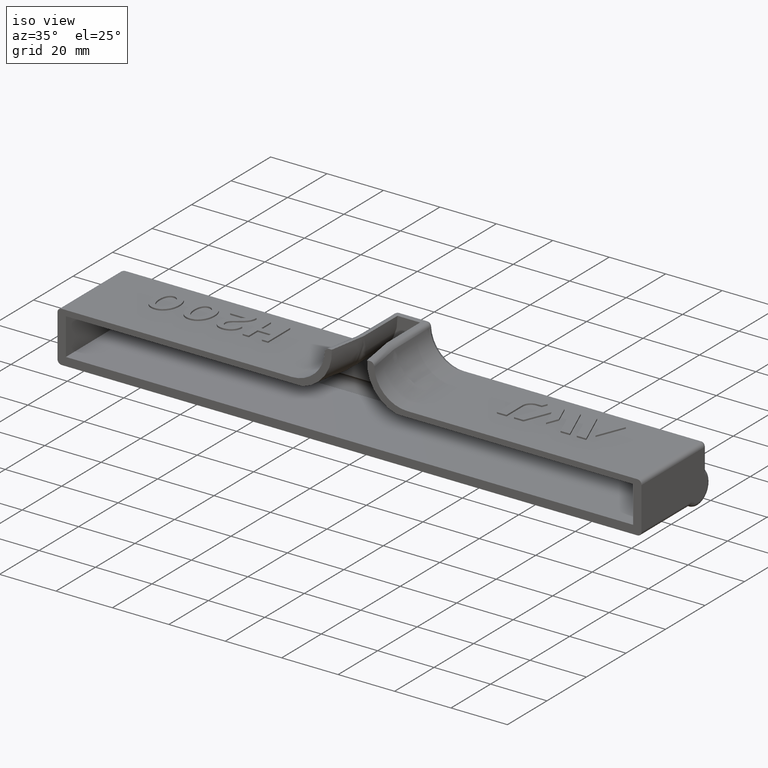
[diagram: clean part render]
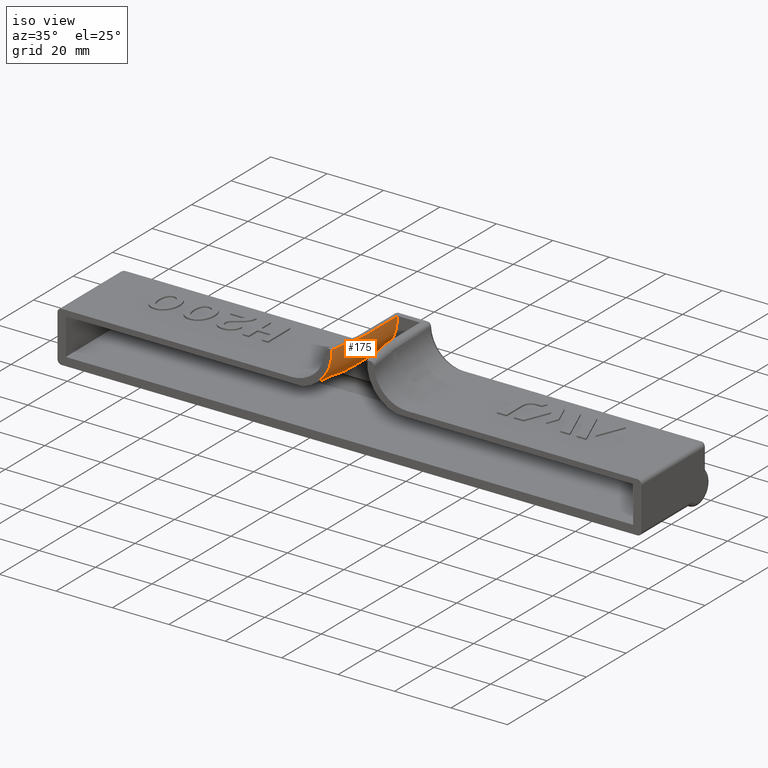
[diagram: same view with one face highlighted and labeled with its STEP entity id]
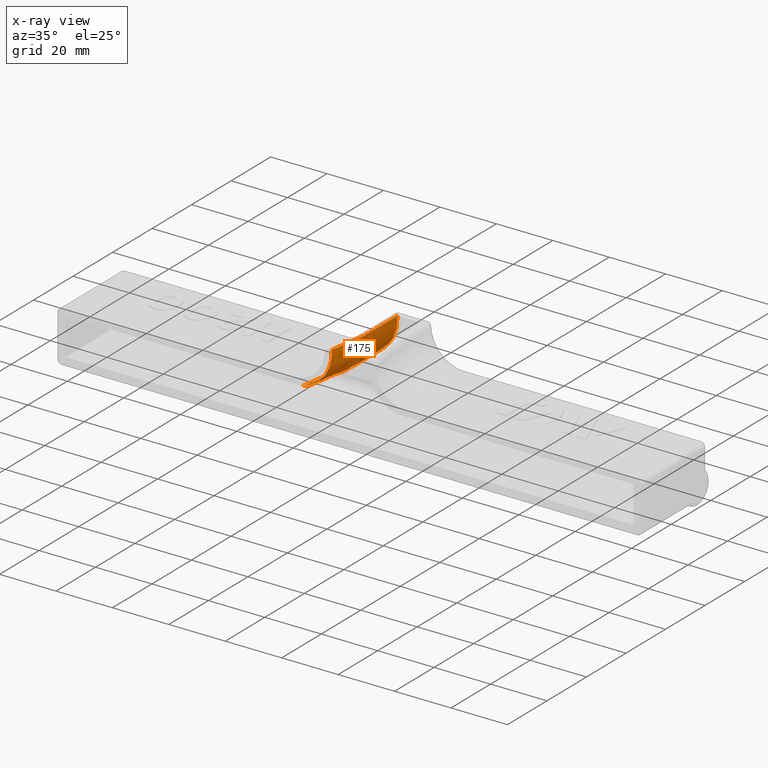
[diagram: x-ray of the same camera — body ghosted, the highlighted face saturated]
A machine part, iso view. The second image highlights one B-rep face of the part: STEP entity #175.
The next image is the same camera in x-ray: the body ghosted, the highlighted face saturated — about 1% of this face is hidden behind the body in this view.
In plain terms, the highlighted face is a OffsetSurface surface.
Its self-contained STEP definition (entity closure, byte-faithful):
#175=ADVANCED_FACE('',(#367),#368,.F.);
#367=FACE_OUTER_BOUND('',#1484,.T.);
#368=OFFSET_SURFACE('',#1485,-2.5,.F.);
#1484=EDGE_LOOP('',(#2280,#2281,#2282,#2283));
#1485=B_SPLINE_SURFACE_WITH_KNOTS('',3,3,((#2284,#2285,#2286,#2287,#2288,#2289,#2290,#2291,#2292,#2293,#2294),(#2295,#2296,#2297,#2298,#2299,#2300,#2301,#2302,#2303,#2304,#2305),(#2306,#2307,#2308,#2309,#2310,#2311,#2312,#2313,#2314,#2315,#2316),(#2317,#2318,#2319,#2320,#2321,#2322,#2323,#2324,#2325,#2326,#2327),(#2328,#2329,#2330,#2331,#2332,#2333,#2334,#2335,#2336,#2337,#2338),(#2339,#2340,#2341,#2342,#2343,#2344,#2345,#2346,#2347,#2348,#2349),(#2350,#2351,#2352,#2353,#2354,#2355,#2356,#2357,#2358,#2359,#2360),(#2361,#2362,#2363,#2364,#2365,#2366,#2367,#2368,#2369,#2370,#2371),(#2372,#2373,#2374,#2375,#2376,#2377,#2378,#2379,#2380,#2381,#2382)),.UNSPECIFIED.,.F.,.F.,.F.,(4,2,1,1,1,4),(4,2,1,1,1,2,4),(0.0,0.2,0.4,0.6,0.8,1.0),(0.164381519444522,1.0,2.0,3.0,4.0,5.0,5.8123749978304),.UNSPECIFIED.);
#2280=ORIENTED_EDGE('',*,*,#3014,.F.);
#2281=ORIENTED_EDGE('',*,*,#3040,.T.);
#2282=ORIENTED_EDGE('',*,*,#2970,.F.);
#2283=ORIENTED_EDGE('',*,*,#2992,.F.);
#2284=CARTESIAN_POINT('',(-6.5,30.0000000000008,21.0));
#2285=CARTESIAN_POINT('',(-6.5,24.9165910901733,21.0));
#2286=CARTESIAN_POINT('',(-6.5,19.8331821803459,21.0));
#2287=CARTESIAN_POINT('',(-6.5,14.4588850677116,21.0));
#2288=CARTESIAN_POINT('',(-6.51269440632922,13.8771086620982,21.0));
#2289=CARTESIAN_POINT('',(-6.56978298802479,13.0061052203591,21.0));
#2290=CARTESIAN_POINT('',(-6.66480987056215,12.138420949857,21.0));
#2291=CARTESIAN_POINT('',(-6.75333273343364,11.5632786745637,21.0));
#2292=CARTESIAN_POINT('',(-7.57740105806199,6.88975496697608,21.0));
#2293=CARTESIAN_POINT('',(-8.35095717636814,2.50270021677236,21.0));
#2294=CARTESIAN_POINT('',(-9.12451329467429,-1.88435453343137,21.0));
#2295=CARTESIAN_POINT('',(-6.5,30.0000000000008,20.6666666666667));
#2296=CARTESIAN_POINT('',(-6.5,24.9165910901733,20.6666666666667));
#2297=CARTESIAN_POINT('',(-6.5,19.8331821803459,20.6666666666667));
#2298=CARTESIAN_POINT('',(-6.5,14.4588850677117,20.6666666666667));
#2299=CARTESIAN_POINT('',(-6.51269440632923,13.8771086620982,20.6666666666667));
#2300=CARTESIAN_POINT('',(-6.5697829880248,13.0061052203591,20.6666666666667));
#2301=CARTESIAN_POINT('',(-6.66480987056215,12.138420949857,20.6666666666666));
#2302=CARTESIAN_POINT('',(-6.75333273343365,11.5632786745637,20.6666666666667));
#2303=CARTESIAN_POINT('',(-7.57740105806199,6.88975496697608,20.6666666666667));
#2304=CARTESIAN_POINT('',(-8.35095717636814,2.50270021677236,20.6666666666667));
#2305=CARTESIAN_POINT('',(-9.12451329467429,-1.88435453343137,20.6666666666667));
#2306=CARTESIAN_POINT('',(-6.5,30.0000000000008,20.3333333333333));
#2307=CARTESIAN_POINT('',(-6.5,24.9165910901733,20.3333333333333));
#2308=CARTESIAN_POINT('',(-6.5,19.8331821803459,20.3333333333333));
#2309=CARTESIAN_POINT('',(-6.5,14.4588850677117,20.3333333333333));
#2310=CARTESIAN_POINT('',(-6.51269440632923,13.8771086620981,20.3333333333333));
#2311=CARTESIAN_POINT('',(-6.5697829880248,13.0061052203591,20.3333333333333));
#2312=CARTESIAN_POINT('',(-6.66480987056215,12.138420949857,20.3333333333333));
#2313=CARTESIAN_POINT('',(-6.75333273343365,11.5632786745637,20.3333333333333));
#2314=CARTESIAN_POINT('',(-7.57740105806199,6.88975496697608,20.3333333333333));
#2315=CARTESIAN_POINT('',(-8.35095717636814,2.50270021677236,20.3333333333333));
#2316=CARTESIAN_POINT('',(-9.1245132946743,-1.88435453343137,20.3333333333333));
#2317=CARTESIAN_POINT('',(-6.5,30.0000000000008,18.4948560899091));
#2318=CARTESIAN_POINT('',(-6.5,24.9165910901733,18.4948560899091));
#2319=CARTESIAN_POINT('',(-6.5,19.8331821803459,18.4948560899091));
#2320=CARTESIAN_POINT('',(-6.5,14.4588850677117,18.4948560899091));
#2321=CARTESIAN_POINT('',(-6.51269440632925,13.8771086620981,18.4948560899091));
#2322=CARTESIAN_POINT('',(-6.56978298802482,13.0061052203591,18.4948560899091));
#2323=CARTESIAN_POINT('',(-6.66480987056217,12.1384209498571,18.494856089909));
#2324=CARTESIAN_POINT('',(-6.75333273343368,11.5632786745636,18.4948560899091));
#2325=CARTESIAN_POINT('',(-7.57740105806201,6.88975496697608,18.4948560899091));
#2326=CARTESIAN_POINT('',(-8.35095717636816,2.50270021677236,18.4948560899091));
#2327=CARTESIAN_POINT('',(-9.12451329467432,-1.88435453343137,18.4948560899091));
#2328=CARTESIAN_POINT('',(-7.09878347680652,30.0000000000008,15.4845682697275));
#2329=CARTESIAN_POINT('',(-7.09878347680652,24.9165910901733,15.4845682697275));
#2330=CARTESIAN_POINT('',(-7.09878347680652,19.8331821803459,15.4845682697275));
#2331=CARTESIAN_POINT('',(-7.09878347680652,14.4675954023403,15.4845682697275));
#2332=CARTESIAN_POINT('',(-7.1110978145261,13.9032349264111,15.4845682697275));
#2333=CARTESIAN_POINT('',(-7.16647724982287,13.0583092038574,15.4845682697275));
#2334=CARTESIAN_POINT('',(-7.25865896457056,12.2166032635474,15.4845682697275));
#2335=CARTESIAN_POINT('',(-7.34453187750344,11.6586783290546,15.4845682697275));
#2336=CARTESIAN_POINT('',(-8.16708766839666,6.99373262654059,15.4845682697275));
#2337=CARTESIAN_POINT('',(-8.94064378670281,2.60667787633688,15.4845682697275));
#2338=CARTESIAN_POINT('',(-9.71419990500896,-1.78037687386685,15.4845682697275));
#2339=CARTESIAN_POINT('',(-9.6565700878986,30.0000000000008,11.6565700878985));
#2340=CARTESIAN_POINT('',(-9.6565700878986,24.9165910901733,11.6565700878985));
#2341=CARTESIAN_POINT('',(-9.6565700878986,19.8331821803459,11.6565700878985));
#2342=CARTESIAN_POINT('',(-9.6565700878986,14.504802803937,11.6565700878985));
#2343=CARTESIAN_POINT('',(-9.66726090987554,14.01483688546,11.6565700878985));
#2344=CARTESIAN_POINT('',(-9.7153394894463,13.2813057547137,11.6565700878985));
#2345=CARTESIAN_POINT('',(-9.79536767564727,12.5505698523516,11.6565700878985));
#2346=CARTESIAN_POINT('',(-9.86992096014073,12.0661911753697,11.6565700878985));
#2347=CARTESIAN_POINT('',(-10.686015753551,7.43788761041759,11.6565700878985));
#2348=CARTESIAN_POINT('',(-11.4595718718571,3.05083286021387,11.6565700878985));
#2349=CARTESIAN_POINT('',(-12.2331279901633,-1.33622188998985,11.6565700878985));
#2350=CARTESIAN_POINT('',(-13.4845682697276,30.0000000000008,9.09878347680647));
#2351=CARTESIAN_POINT('',(-13.4845682697276,24.9165910901733,9.09878347680647));
#2352=CARTESIAN_POINT('',(-13.4845682697276,19.8331821803459,9.09878347680648));
#2353=CARTESIAN_POINT('',(-13.4845682697276,14.5604876155803,9.09878347680649));
#2354=CARTESIAN_POINT('',(-13.4928293286883,14.1818610204974,9.09878347680649));
#2355=CARTESIAN_POINT('',(-13.5299814055072,13.6150436777798,9.09878347680647));
#2356=CARTESIAN_POINT('',(-13.5918205508484,13.0503861736936,9.09878347680645));
#2357=CARTESIAN_POINT('',(-13.6494328141882,12.6760772495252,9.09878347680649));
#2358=CARTESIAN_POINT('',(-14.4558580415328,8.10261251880451,9.0987834768065));
#2359=CARTESIAN_POINT('',(-15.2294141598389,3.71555776860079,9.0987834768065));
#2360=CARTESIAN_POINT('',(-16.0029702781451,-0.671496981602923,9.0987834768065));
#2361=CARTESIAN_POINT('',(-16.4948560899092,30.0000000000008,8.5));
#2362=CARTESIAN_POINT('',(-16.4948560899092,24.9165910901733,8.5));
#2363=CARTESIAN_POINT('',(-16.4948560899092,19.8331821803459,8.5));
#2364=CARTESIAN_POINT('',(-16.4948560899092,14.6042774248479,8.5));
#2365=CARTESIAN_POINT('',(-16.5012064149389,14.31320662086,8.5));
#2366=CARTESIAN_POINT('',(-16.5297660325692,13.8774908256671,8.5));
#2367=CARTESIAN_POINT('',(-16.5773015535198,13.4434352068948,8.5));
#2368=CARTESIAN_POINT('',(-16.6215916188809,13.1556837000831,8.5));
#2369=CARTESIAN_POINT('',(-17.4204128256458,8.625343513032,8.5));
#2370=CARTESIAN_POINT('',(-18.193968943952,4.23828876282828,8.5));
#2371=CARTESIAN_POINT('',(-18.9675250622582,-0.148765987375433,8.5));
#2372=CARTESIAN_POINT('',(-18.0,30.0000000000008,8.5));
#2373=CARTESIAN_POINT('',(-18.0,24.9165910901733,8.5));
#2374=CARTESIAN_POINT('',(-18.0,19.8331821803459,8.5));
#2375=CARTESIAN_POINT('',(-18.0,14.6261723294817,8.5));
#2376=CARTESIAN_POINT('',(-18.0053949580643,14.3788794210414,8.5));
#2377=CARTESIAN_POINT('',(-18.0296583461003,14.0087143996108,8.5));
#2378=CARTESIAN_POINT('',(-18.0700420548555,13.6399597234954,8.5));
#2379=CARTESIAN_POINT('',(-18.1076710212273,13.395486925362,8.5));
#2380=CARTESIAN_POINT('',(-18.9026902177024,8.88670901014575,8.5));
#2381=CARTESIAN_POINT('',(-19.6762463360085,4.49965425994203,8.5));
#2382=CARTESIAN_POINT('',(-20.4498024543147,0.112599509738314,8.5));
#2970=EDGE_CURVE('',#3332,#3334,#3335,.T.);
#2992=EDGE_CURVE('',#3367,#3332,#3369,.F.);
#3014=EDGE_CURVE('',#3403,#3367,#3405,.T.);
#3040=EDGE_CURVE('',#3403,#3334,#3442,.T.);
#3332=VERTEX_POINT('',#4090);
#3334=VERTEX_POINT('',#4093);
#3335=B_SPLINE_CURVE_WITH_KNOTS('',3,(#4094,#4095,#4096,#4097,#4098,#4099,#4100,#4101,#4102,#4103,#4104,#4105,#4106,#4107,#4108,#4109,#4110,#4111,#4112,#4113,#4114,#4115,#4116,#4117,#4118,#4119,#4120,#4121,#4122),.UNSPECIFIED.,.F.,.F.,(4,2,2,2,2,2,1,2,2,2,2,2,2,2,4),(0.0,0.000723921650554902,0.0014478433011098,0.00289568660221962,0.00579137320443926,0.00723921650554908,0.0086870598066589,0.0101349031077687,0.0115827464088785,0.0144784330110982,0.015926276312208,0.0173741196133178,0.0202698062155375,0.0217176495166473,0.0231654928177571),.UNSPECIFIED.);
#3367=VERTEX_POINT('',#4249);
#3369=B_SPLINE_CURVE_WITH_KNOTS('',3,(#4254,#4255,#4256,#4257,#4258,#4259,#4260,#4261,#4262,#4263,#4264,#4265,#4266,#4267,#4268,#4269,#4270,#4271,#4272,#4273,#4274,#4275,#4276,#4277,#4278,#4279,#4280,#4281,#4282,#4283,#4284,#4285,#4286,#4287,#4288,#4289,#4290,#4291,#4292,#4293,#4294,#4295,#4296,#4297,#4298,#4299),.UNSPECIFIED.,.F.,.F.,(4,2,2,2,2,2,2,2,2,2,2,2,2,2,2,2,2,2,2,2,2,2,4),(0.0273969199074275,0.125,0.15625,0.1640625,0.166015625,0.16650390625,0.1669921875,0.16796875,0.171875,0.1875,0.25,0.5,0.75,0.8125,0.828125,0.83203125,0.8330078125,0.83349609375,0.833984375,0.8359375,0.84375,0.875,0.944877792305117),.UNSPECIFIED.);
#3403=VERTEX_POINT('',#4554);
#3405=B_SPLINE_CURVE_WITH_KNOTS('',3,(#4557,#4558,#4559,#4560,#4561,#4562,#4563,#4564,#4565,#4566,#4567,#4568,#4569,#4570,#4571,#4572,#4573,#4574,#4575,#4576,#4577,#4578,#4579,#4580,#4581,#4582,#4583,#4584),.UNSPECIFIED.,.F.,.F.,(4,2,2,2,2,2,2,2,2,2,2,2,2,4),(0.00388432048821851,0.00508053382071956,0.00627674715322062,0.00866917381822273,0.00986538715072379,0.0110616004832248,0.013454027148227,0.014650240480728,0.0158464538132291,0.0182388804782312,0.0206313071432333,0.0218275204757344,0.0224256271419849,0.0230237338082355),.UNSPECIFIED.);
#3442=B_SPLINE_CURVE_WITH_KNOTS('',3,(#4705,#4706,#4707,#4708,#4709,#4710,#4711,#4712,#4713,#4714,#4715,#4716,#4717,#4718,#4719,#4720,#4721,#4722,#4723,#4724,#4725,#4726,#4727,#4728,#4729,#4730,#4731,#4732,#4733,#4734,#4735,#4736,#4737,#4738),.UNSPECIFIED.,.F.,.F.,(4,2,2,2,2,2,2,2,2,2,2,2,2,2,2,2,4),(0.0,0.0076311249168365,0.0114466873752548,0.0124005779898593,0.0133544686044639,0.0143083592190684,0.015262249833673,0.0190778122920912,0.0228933747505095,0.0248011559797186,0.0267089372089277,0.0286167184381369,0.0295706090527414,0.0300475543600437,0.0302860270136949,0.0304052633405204,0.030524499667346),.UNSPECIFIED.);
#4090=CARTESIAN_POINT('',(-4.0,30.0,21.0));
#4093=CARTESIAN_POINT('',(-18.0,30.0,6.0));
#4094=CARTESIAN_POINT('',(-4.0,30.0,21.0));
#4095=CARTESIAN_POINT('',(-4.0,30.0,20.7586927831484));
#4096=CARTESIAN_POINT('',(-4.0,29.9999999999998,20.5173855662967));
#4097=CARTESIAN_POINT('',(-4.0,29.9999999999998,20.0347711325935));
#4098=CARTESIAN_POINT('',(-3.99944495783233,29.9999999999998,19.7934552306156));
#4099=CARTESIAN_POINT('',(-4.02279059168765,29.9999999999998,19.0698988852374));
#4100=CARTESIAN_POINT('',(-4.06345753247563,29.9999999999998,18.5899078365579));
#4101=CARTESIAN_POINT('',(-4.25676725546056,29.9999999999998,17.1694747522423));
#4102=CARTESIAN_POINT('',(-4.47989976323835,29.9999999999998,16.2431223831274));
#4103=CARTESIAN_POINT('',(-4.95894680103056,29.9999999999998,14.8851451842449));
#4104=CARTESIAN_POINT('',(-5.14372181120939,29.9999999999998,14.4370800240779));
#4105=CARTESIAN_POINT('',(-5.55413246239105,29.9999999999998,13.5718708840483));
#4106=CARTESIAN_POINT('',(-6.00677627986521,29.9999999999998,12.7322898114105));
#4107=CARTESIAN_POINT('',(-6.54187345945944,29.9999999999998,11.9427433562686));
#4108=CARTESIAN_POINT('',(-7.11886441374165,29.9999999999998,11.1786190178005));
#4109=CARTESIAN_POINT('',(-7.43027469841202,29.9999999999998,10.8073293250876));
#4110=CARTESIAN_POINT('',(-8.41150678218682,29.9999999999998,9.75365095711262));
#4111=CARTESIAN_POINT('',(-9.12913740419076,29.9999999999998,9.12788171317926));
#4112=CARTESIAN_POINT('',(-10.2976447087453,29.9999999999998,8.30044395195528));
#4113=CARTESIAN_POINT('',(-10.7037597731672,29.9999999999998,8.04268295404368));
#4114=CARTESIAN_POINT('',(-11.5433103740533,29.9999999999998,7.56885840621002));
#4115=CARTESIAN_POINT('',(-11.9717704451216,29.9999999999998,7.35544659833333));
#4116=CARTESIAN_POINT('',(-13.2826227430776,29.9999999999998,6.78413710130467));
#4117=CARTESIAN_POINT('',(-14.1903161255852,29.9999999999998,6.49470281482433));
#4118=CARTESIAN_POINT('',(-15.603058564123,29.9999999999998,6.1991018991617));
#4119=CARTESIAN_POINT('',(-16.0806687507794,29.9999999999998,6.12450058978982));
#4120=CARTESIAN_POINT('',(-17.0368751790406,29.9999999999998,6.02515146288905));
#4121=CARTESIAN_POINT('',(-17.5172649939978,30.0,6.0));
#4122=CARTESIAN_POINT('',(-18.0,30.0,6.0));
#4249=CARTESIAN_POINT('',(-6.25368421949567,1.7347234759768E-14,21.0));
#4254=CARTESIAN_POINT('',(-4.0,30.0,21.0));
#4255=CARTESIAN_POINT('',(-4.0,26.4374433176296,21.0));
#4256=CARTESIAN_POINT('',(-4.0,22.8748866352592,21.0));
#4257=CARTESIAN_POINT('',(-4.0,18.1716907822962,21.0));
#4258=CARTESIAN_POINT('',(-4.0,17.0310516117036,21.0));
#4259=CARTESIAN_POINT('',(-4.0,15.6052526484628,21.0));
#4260=CARTESIAN_POINT('',(-4.0,15.3200928558147,21.0));
#4261=CARTESIAN_POINT('',(-4.0,14.9636431150045,21.0));
#4262=CARTESIAN_POINT('',(-4.0,14.8923531668425,21.0));
#4263=CARTESIAN_POINT('',(-4.0,14.8032407316399,21.0));
#4264=CARTESIAN_POINT('',(-4.0,14.7854182445994,21.0));
#4265=CARTESIAN_POINT('',(-4.0,14.7497732705184,21.0));
#4266=CARTESIAN_POINT('',(-4.0,14.7488145156379,21.0));
#4267=CARTESIAN_POINT('',(-4.00000024515725,14.7459382516031,21.0));
#4268=CARTESIAN_POINT('',(-4.00000065375232,14.7440207428593,21.0));
#4269=CARTESIAN_POINT('',(-4.00000392250404,14.7344332024825,21.0));
#4270=CARTESIAN_POINT('',(-4.00001045998957,14.7267631808762,21.0));
#4271=CARTESIAN_POINT('',(-4.00006275930904,14.6884131441458,21.0));
#4272=CARTESIAN_POINT('',(-4.000167356791,14.6577333429261,21.0));
#4273=CARTESIAN_POINT('',(-4.00100410156691,14.5043366183735,21.0));
#4274=CARTESIAN_POINT('',(-4.00267751395437,14.3816265398498,21.0));
#4275=CARTESIAN_POINT('',(-4.0160628418441,13.7681856474061,21.0));
#4276=CARTESIAN_POINT('',(-4.04283606419757,13.2777836008542,21.0));
#4277=CARTESIAN_POINT('',(-4.12840252167388,12.299754516538,21.0));
#4278=CARTESIAN_POINT('',(-4.18719346643493,11.8121536577287,21.0));
#4279=CARTESIAN_POINT('',(-4.28053438483175,11.2057079730398,21.0));
#4280=CARTESIAN_POINT('',(-4.30019477685559,11.0845715513254,21.0));
#4281=CARTESIAN_POINT('',(-4.32600780579161,10.9333599684938,21.0));
#4282=CARTESIAN_POINT('',(-4.33123228895342,10.9031280992297,21.0));
#4283=CARTESIAN_POINT('',(-4.33784019816983,10.8653516040477,21.0));
#4284=CARTESIAN_POINT('',(-4.33916564527799,10.8577969720816,21.0));
#4285=CARTESIAN_POINT('',(-4.3408272851007,10.8483545203734,21.0));
#4286=CARTESIAN_POINT('',(-4.34115985461212,10.8464660719443,21.0));
#4287=CARTESIAN_POINT('',(-4.34165907118753,10.843633462252,21.0));
#4288=CARTESIAN_POINT('',(-4.34182555722532,10.8426892730125,21.0));
#4289=CARTESIAN_POINT('',(-4.34740494530694,10.8110469908206,21.0));
#4290=CARTESIAN_POINT('',(-4.35019463934775,10.7952258497247,21.0));
#4291=CARTESIAN_POINT('',(-4.3641431095518,10.716120144245,21.0));
#4292=CARTESIAN_POINT('',(-4.37530188571503,10.6528355798612,21.0));
#4293=CARTESIAN_POINT('',(-4.43109576653123,10.3364127579424,21.0));
#4294=CARTESIAN_POINT('',(-4.47573087118418,10.0832745004074,21.0));
#4295=CARTESIAN_POINT('',(-4.69890639444893,8.81758321273236,21.0));
#4296=CARTESIAN_POINT('',(-4.87744681306073,7.8050301825923,21.0));
#4297=CARTESIAN_POINT('',(-5.4552195609469,4.52831810163484,21.0));
#4298=CARTESIAN_POINT('',(-5.85445189022128,2.26415905081744,21.0));
#4299=CARTESIAN_POINT('',(-6.25368421949566,3.16587034365767E-14,21.0));
#4554=CARTESIAN_POINT('',(-16.6199490636014,0.0,6.52365194784656));
#4557=CARTESIAN_POINT('',(-16.6199490636163,5.87284822662018E-15,6.52365194784246));
#4558=CARTESIAN_POINT('',(-16.2331398492386,5.97769534163322E-15,6.63066899332363));
#4559=CARTESIAN_POINT('',(-15.8476681303766,8.92984873548314E-15,6.75489095704906));
#4560=CARTESIAN_POINT('',(-15.0952931113728,9.20225354424683E-15,7.03293349360453));
#4561=CARTESIAN_POINT('',(-14.7270225918247,7.08852993820322E-15,7.187080648534));
#4562=CARTESIAN_POINT('',(-13.6454302854677,7.58505699153939E-15,7.693883894793));
#4563=CARTESIAN_POINT('',(-12.9550391116121,1.10216201534469E-14,8.09035030474244));
#4564=CARTESIAN_POINT('',(-11.9662781336125,1.1691910820845E-14,8.77451340097663));
#4565=CARTESIAN_POINT('',(-11.6432321182417,7.85303742413283E-15,9.01878729748932));
#4566=CARTESIAN_POINT('',(-11.024253931525,8.35357955105782E-15,9.52968871385833));
#4567=CARTESIAN_POINT('',(-10.7273553845974,6.29938913369731E-15,9.79679841720399));
#4568=CARTESIAN_POINT('',(-9.87410146542679,7.11843856073168E-15,10.6327990050442));
#4569=CARTESIAN_POINT('',(-9.3548867108356,2.98502009303562E-14,11.2360825415072));
#4570=CARTESIAN_POINT('',(-8.65124987575088,3.08049882985402E-14,12.2106303217974));
#4571=CARTESIAN_POINT('',(-8.42864969801333,1.52616004615931E-14,12.5484056919542));
#4572=CARTESIAN_POINT('',(-8.01499729704118,1.59385965657865E-14,13.2394130016358));
#4573=CARTESIAN_POINT('',(-7.82345529470836,2.67603090030106E-14,13.5931037012635));
#4574=CARTESIAN_POINT('',(-7.29511959473199,2.78241591091304E-14,14.6789713970756));
#4575=CARTESIAN_POINT('',(-7.00519227658976,1.93148056902147E-14,15.4376617066419));
#4576=CARTESIAN_POINT('',(-6.56384284023537,2.08319297613683E-14,16.9861843884821));
#4577=CARTESIAN_POINT('',(-6.41045471897016,2.28432257109761E-14,17.7802400539121));
#4578=CARTESIAN_POINT('',(-6.28563305065739,2.40213886580217E-14,18.9827864250975));
#4579=CARTESIAN_POINT('',(-6.26153410223414,1.37785707885351E-14,19.3858873875395));
#4580=CARTESIAN_POINT('',(-6.25219746355324,1.43714906803086E-14,19.9910784318206));
#4581=CARTESIAN_POINT('',(-6.25368421949567,2.72592749688558E-14,20.1928815709928));
#4582=CARTESIAN_POINT('',(-6.25368421949566,2.7654651417415E-14,20.5964407854964));
#4583=CARTESIAN_POINT('',(-6.25368421949567,2.40884404393957E-14,20.7982203927482));
#4584=CARTESIAN_POINT('',(-6.25368421949567,2.42861286636753E-14,21.0));
#4705=CARTESIAN_POINT('',(-16.6199490636014,-6.93889390390723E-15,6.52365194784659));
#4706=CARTESIAN_POINT('',(-16.3337762700837,2.52721816043387,6.47953919076844));
#4707=CARTESIAN_POINT('',(-16.0578361488861,5.05553422801626,6.4354072696497));
#4708=CARTESIAN_POINT('',(-15.6676964558783,8.85055876672906,6.36916486992228));
#4709=CARTESIAN_POINT('',(-15.5416594688041,10.116003257517,6.34707645417252));
#4710=CARTESIAN_POINT('',(-15.3907374157651,11.6984386992185,6.3194549407929));
#4711=CARTESIAN_POINT('',(-15.3608872666539,12.0149573363245,6.31393008743129));
#4712=CARTESIAN_POINT('',(-15.3019097442743,12.6480628286409,6.30287918995649));
#4713=CARTESIAN_POINT('',(-15.2699549407147,12.9646797842067,6.29735262043965));
#4714=CARTESIAN_POINT('',(-15.2410529595437,13.5991859305804,6.28627727445734));
#4715=CARTESIAN_POINT('',(-15.2403327824925,13.9171632657785,6.28072695942576));
#4716=CARTESIAN_POINT('',(-15.2664589598215,14.5521436398718,6.26964333576781));
#4717=CARTESIAN_POINT('',(-15.2970777248972,14.8684240270842,6.26412264107351));
#4718=CARTESIAN_POINT('',(-15.4389520713513,16.4505984724754,6.23650568340143));
#4719=CARTESIAN_POINT('',(-15.5596236374301,17.7156358237864,6.21442437429769));
#4720=CARTESIAN_POINT('',(-15.8232676875764,20.2435270877551,6.17029986815364));
#4721=CARTESIAN_POINT('',(-15.9657882011205,21.5063602189967,6.1482570338543));
#4722=CARTESIAN_POINT('',(-16.2098506626768,23.3969066347059,6.11525742341828));
#4723=CARTESIAN_POINT('',(-16.2963264642036,24.0264427869782,6.10426882900571));
#4724=CARTESIAN_POINT('',(-16.4852741495239,25.2830870819173,6.08233402124587));
#4725=CARTESIAN_POINT('',(-16.5874359470916,25.9103837998915,6.07138451630561));
#4726=CARTESIAN_POINT('',(-16.8209489990005,27.1595287086006,6.04958061081934));
#4727=CARTESIAN_POINT('',(-16.9498168560471,27.7825773812326,6.03870525578387));
#4728=CARTESIAN_POINT('',(-17.2024057185272,28.7015584482897,6.02266438159058));
#4729=CARTESIAN_POINT('',(-17.2955339751526,29.0062383959512,6.01734617332183));
#4730=CARTESIAN_POINT('',(-17.4786068833348,29.4463010978625,6.00966485028748));
#4731=CARTESIAN_POINT('',(-17.5464803899967,29.5909679840756,6.00713968039566));
#4732=CARTESIAN_POINT('',(-17.677631929677,29.7892393369942,6.00367884105707));
#4733=CARTESIAN_POINT('',(-17.7266429513365,29.8529738465555,6.00256635105451));
#4734=CARTESIAN_POINT('',(-17.8163172909026,29.9321098382034,6.00118502718213));
#4735=CARTESIAN_POINT('',(-17.8487511945907,29.9553355084809,6.00077962159943));
#4736=CARTESIAN_POINT('',(-17.9200146788345,29.989395335222,6.00018510511223));
#4737=CARTESIAN_POINT('',(-17.9596336204097,30.0000000000008,6.0));
#4738=CARTESIAN_POINT('',(-18.0,30.0000000000008,6.0));